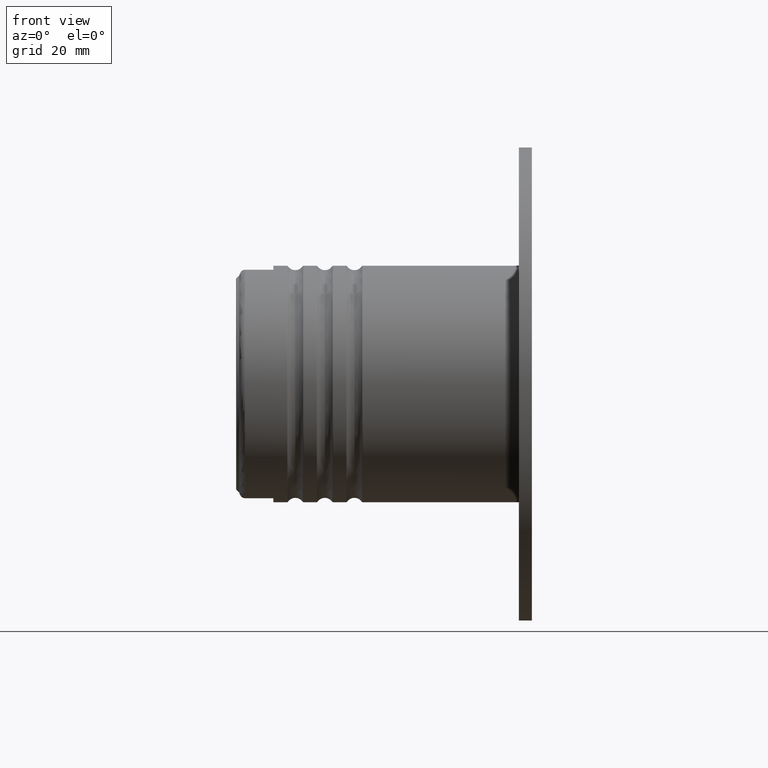
[diagram: clean part render]
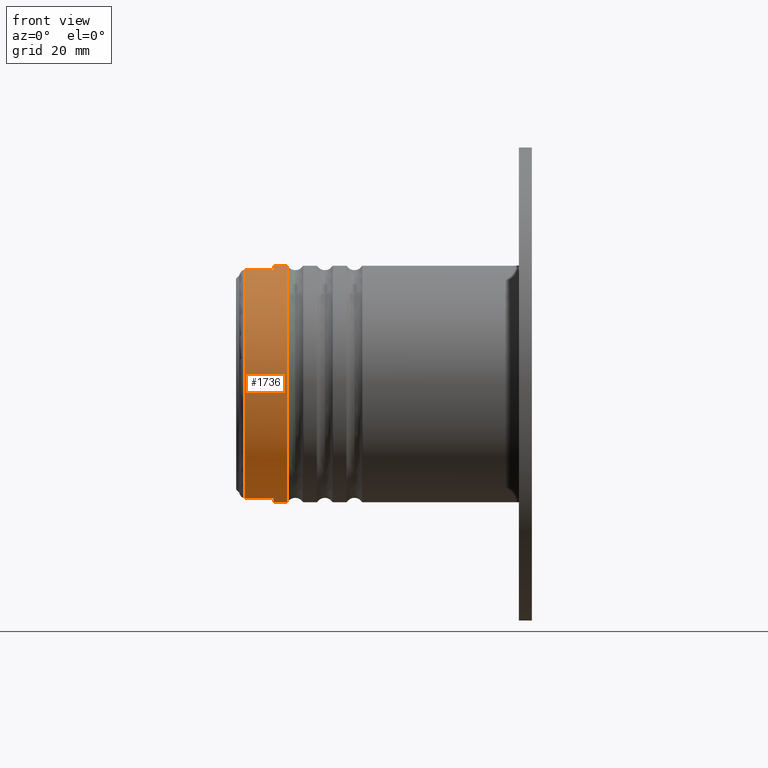
[diagram: same view with one face highlighted and labeled with its STEP entity id]
A machine part, front view. The second image highlights one B-rep face of the part: STEP entity #1736.
In plain terms, the highlighted cylindrical surface (partial cylindrical patch) has radius 20 mm, axis along (1, 0, 0).
Its self-contained STEP definition (entity closure, byte-faithful):
#35 = DIRECTION ( 'NONE',  ( 0.0000000000000000000, 0.0000000000000000000, -1.000000000000000000 ) ) ;
#59 = AXIS2_PLACEMENT_3D ( 'NONE', #3624, #4030, #2796 ) ;
#213 = CARTESIAN_POINT ( 'NONE',  ( -43.44972663000000068, -5.200000000000005507, 19.31217232731729538 ) ) ;
#369 = EDGE_CURVE ( 'NONE', #3689, #2329, #3205, .T. ) ;
#419 = EDGE_CURVE ( 'NONE', #3314, #1401, #2144, .T. ) ;
#461 = CARTESIAN_POINT ( 'NONE',  ( -41.15951384798715651, 2.449293598294706513E-15, 20.00000000000000000 ) ) ;
#529 = VECTOR ( 'NONE', #3802, 1000.000000000000000 ) ;
#574 = VECTOR ( 'NONE', #1862, 1000.000000000000000 ) ;
#600 = EDGE_CURVE ( 'NONE', #3689, #4759, #2783, .T. ) ;
#614 = LINE ( 'NONE', #1513, #4756 ) ;
#676 = DIRECTION ( 'NONE',  ( 1.000000000000000000, -0.0000000000000000000, -0.0000000000000000000 ) ) ;
#678 = CARTESIAN_POINT ( 'NONE',  ( -41.15951384798715651, 0.0000000000000000000, 0.0000000000000000000 ) ) ;
#750 = CARTESIAN_POINT ( 'NONE',  ( -48.24972663000000495, 0.0000000000000000000, 0.0000000000000000000 ) ) ;
#771 = AXIS2_PLACEMENT_3D ( 'NONE', #5015, #4172, #1800 ) ;
#1026 = EDGE_CURVE ( 'NONE', #2329, #1401, #614, .T. ) ;
#1027 = AXIS2_PLACEMENT_3D ( 'NONE', #750, #676, #4307 ) ;
#1192 = ORIENTED_EDGE ( 'NONE', *, *, #2151, .T. ) ;
#1234 = CARTESIAN_POINT ( 'NONE',  ( 0.0000000000000000000, 0.0000000000000000000, 0.0000000000000000000 ) ) ;
#1317 = VERTEX_POINT ( 'NONE', #461 ) ;
#1401 = VERTEX_POINT ( 'NONE', #2152 ) ;
#1513 = CARTESIAN_POINT ( 'NONE',  ( 8.509964221773027172E-16, -5.199999999999999289, -19.31217232731729538 ) ) ;
#1578 = EDGE_CURVE ( 'NONE', #2397, #1317, #2937, .T. ) ;
#1673 = CARTESIAN_POINT ( 'NONE',  ( 8.509964221773027172E-16, -5.199999999999999289, 19.31217232731729538 ) ) ;
#1736 = ADVANCED_FACE ( 'NONE', ( #3746 ), #3616, .T. ) ;
#1800 = DIRECTION ( 'NONE',  ( 0.0000000000000000000, 0.0000000000000000000, -1.000000000000000000 ) ) ;
#1844 = CARTESIAN_POINT ( 'NONE',  ( 0.0000000000000000000, 2.449293598294706119E-15, 19.99999999999999645 ) ) ;
#1862 = DIRECTION ( 'NONE',  ( 1.000000000000000000, -0.0000000000000000000, -0.0000000000000000000 ) ) ;
#1896 = ORIENTED_EDGE ( 'NONE', *, *, #4944, .F. ) ;
#2065 = DIRECTION ( 'NONE',  ( 1.000000000000000000, -0.0000000000000000000, -0.0000000000000000000 ) ) ;
#2144 = CIRCLE ( 'NONE', #1027, 19.99999999999998934 ) ;
#2151 = EDGE_CURVE ( 'NONE', #4759, #1317, #5136, .T. ) ;
#2152 = CARTESIAN_POINT ( 'NONE',  ( -48.24972663000000495, -5.199999999999999289, -19.31217232731729538 ) ) ;
#2183 = CARTESIAN_POINT ( 'NONE',  ( -48.24972663000000495, -5.199999999999999289, 19.31217232731729538 ) ) ;
#2329 = VERTEX_POINT ( 'NONE', #4215 ) ;
#2397 = VERTEX_POINT ( 'NONE', #5029 ) ;
#2449 = CIRCLE ( 'NONE', #59, 19.99999999999999645 ) ;
#2483 = VECTOR ( 'NONE', #2065, 1000.000000000000000 ) ;
#2517 = ORIENTED_EDGE ( 'NONE', *, *, #369, .F. ) ;
#2533 = EDGE_CURVE ( 'NONE', #2740, #2397, #2449, .T. ) ;
#2692 = DIRECTION ( 'NONE',  ( -1.000000000000000000, -0.0000000000000000000, -0.0000000000000000000 ) ) ;
#2740 = VERTEX_POINT ( 'NONE', #213 ) ;
#2783 = LINE ( 'NONE', #3406, #529 ) ;
#2796 = DIRECTION ( 'NONE',  ( 0.0000000000000000000, 5.329070518200751394E-15, -1.000000000000000000 ) ) ;
#2904 = CARTESIAN_POINT ( 'NONE',  ( -41.15951384798715651, 0.0000000000000000000, -20.00000000000000000 ) ) ;
#2937 = LINE ( 'NONE', #1844, #574 ) ;
#3205 = CIRCLE ( 'NONE', #771, 19.99999999999999645 ) ;
#3229 = ORIENTED_EDGE ( 'NONE', *, *, #600, .T. ) ;
#3272 = LINE ( 'NONE', #1673, #2483 ) ;
#3284 = AXIS2_PLACEMENT_3D ( 'NONE', #1234, #3618, #35 ) ;
#3314 = VERTEX_POINT ( 'NONE', #2183 ) ;
#3406 = CARTESIAN_POINT ( 'NONE',  ( 0.0000000000000000000, 0.0000000000000000000, -19.99999999999999645 ) ) ;
#3525 = DIRECTION ( 'NONE',  ( 0.0000000000000000000, 0.0000000000000000000, 1.000000000000000000 ) ) ;
#3607 = ORIENTED_EDGE ( 'NONE', *, *, #1026, .F. ) ;
#3616 = CYLINDRICAL_SURFACE ( 'NONE', #3284, 19.99999999999999645 ) ;
#3618 = DIRECTION ( 'NONE',  ( 1.000000000000000000, -0.0000000000000000000, -0.0000000000000000000 ) ) ;
#3624 = CARTESIAN_POINT ( 'NONE',  ( -43.44972663000000068, 0.0000000000000000000, 0.0000000000000000000 ) ) ;
#3689 = VERTEX_POINT ( 'NONE', #4891 ) ;
#3727 = EDGE_LOOP ( 'NONE', ( #5045, #4527, #1896, #4596, #3607, #2517, #3229, #1192 ) ) ;
#3746 = FACE_OUTER_BOUND ( 'NONE', #3727, .T. ) ;
#3802 = DIRECTION ( 'NONE',  ( 1.000000000000000000, -0.0000000000000000000, -0.0000000000000000000 ) ) ;
#3830 = DIRECTION ( 'NONE',  ( -1.000000000000000000, 0.0000000000000000000, 0.0000000000000000000 ) ) ;
#4030 = DIRECTION ( 'NONE',  ( -1.000000000000000000, 0.0000000000000000000, -0.0000000000000000000 ) ) ;
#4074 = AXIS2_PLACEMENT_3D ( 'NONE', #678, #2692, #3525 ) ;
#4172 = DIRECTION ( 'NONE',  ( -1.000000000000000000, 0.0000000000000000000, -0.0000000000000000000 ) ) ;
#4215 = CARTESIAN_POINT ( 'NONE',  ( -43.44972663000000068, -5.200000000000005507, -19.31217232731729538 ) ) ;
#4307 = DIRECTION ( 'NONE',  ( 0.0000000000000000000, 0.0000000000000000000, -1.000000000000000000 ) ) ;
#4527 = ORIENTED_EDGE ( 'NONE', *, *, #2533, .F. ) ;
#4596 = ORIENTED_EDGE ( 'NONE', *, *, #419, .T. ) ;
#4756 = VECTOR ( 'NONE', #3830, 1000.000000000000000 ) ;
#4759 = VERTEX_POINT ( 'NONE', #2904 ) ;
#4891 = CARTESIAN_POINT ( 'NONE',  ( -43.44972663000000068, 0.0000000000000000000, -19.99999999999999645 ) ) ;
#4944 = EDGE_CURVE ( 'NONE', #3314, #2740, #3272, .T. ) ;
#5015 = CARTESIAN_POINT ( 'NONE',  ( -43.44972663000000068, 0.0000000000000000000, 0.0000000000000000000 ) ) ;
#5029 = CARTESIAN_POINT ( 'NONE',  ( -43.44972663000000068, 2.449293598294706119E-15, 19.99999999999999645 ) ) ;
#5045 = ORIENTED_EDGE ( 'NONE', *, *, #1578, .F. ) ;
#5136 = CIRCLE ( 'NONE', #4074, 20.00000000000000000 ) ;